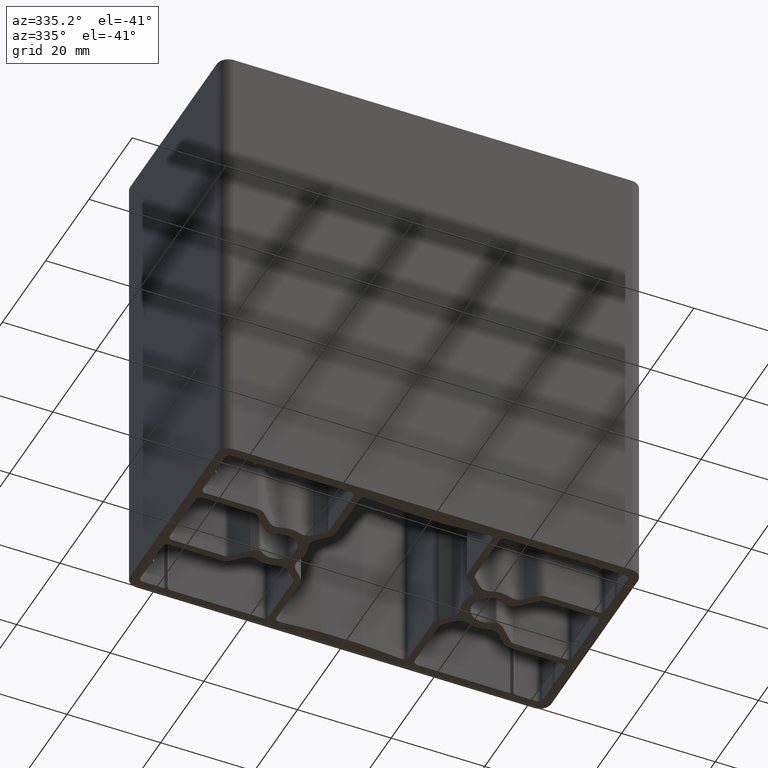
[diagram: clean part render]
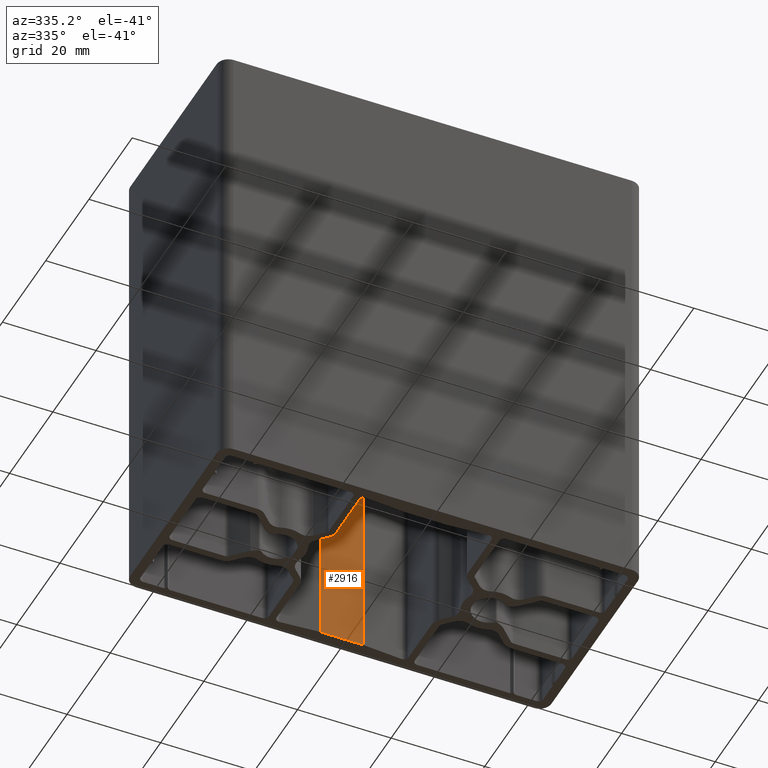
[diagram: same view with one face highlighted and labeled with its STEP entity id]
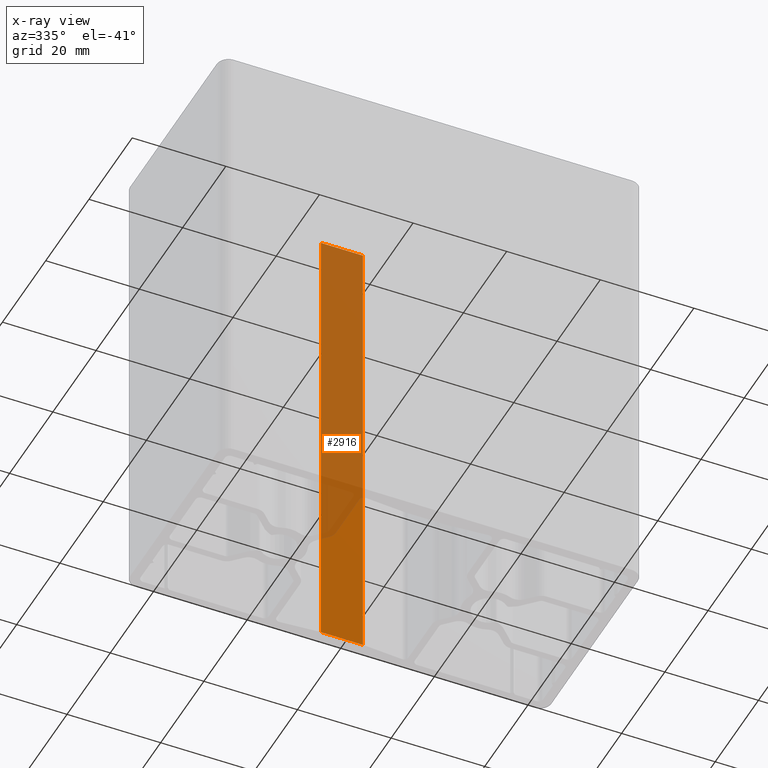
[diagram: x-ray of the same camera — body ghosted, the highlighted face saturated]
A machine part, auxiliary view. The second image highlights one B-rep face of the part: STEP entity #2916.
The next image is the same camera in x-ray: the body ghosted, the highlighted face saturated — about 70% of this face is hidden behind the body in this view.
In plain terms, the highlighted planar face has unit normal (-0, 1, 0).
Its self-contained STEP definition (entity closure, byte-faithful):
#276=FACE_OUTER_BOUND('',#426,.T.);
#426=EDGE_LOOP('',(#2075,#2076,#2077,#2078));
#636=LINE('',#4454,#944);
#637=LINE('',#4457,#945);
#638=LINE('',#4459,#946);
#639=LINE('',#4460,#947);
#944=VECTOR('',#3568,100.);
#945=VECTOR('',#3571,9.);
#946=VECTOR('',#3572,9.);
#947=VECTOR('',#3573,100.);
#1249=VERTEX_POINT('',#4450);
#1250=VERTEX_POINT('',#4452);
#1251=VERTEX_POINT('',#4456);
#1252=VERTEX_POINT('',#4458);
#1588=EDGE_CURVE('',#1250,#1249,#636,.T.);
#1589=EDGE_CURVE('',#1249,#1251,#637,.T.);
#1590=EDGE_CURVE('',#1252,#1250,#638,.T.);
#1591=EDGE_CURVE('',#1252,#1251,#639,.T.);
#2075=ORIENTED_EDGE('',*,*,#1589,.F.);
#2076=ORIENTED_EDGE('',*,*,#1588,.F.);
#2077=ORIENTED_EDGE('',*,*,#1590,.F.);
#2078=ORIENTED_EDGE('',*,*,#1591,.T.);
#2814=PLANE('',#3108);
#2916=ADVANCED_FACE('',(#276),#2814,.F.);
#3108=AXIS2_PLACEMENT_3D('',#4455,#3569,#3570);
#3568=DIRECTION('',(0.,0.,1.));
#3569=DIRECTION('center_axis',(-2.46716227694479E-16,1.,0.));
#3570=DIRECTION('ref_axis',(-1.,-3.5527136788005E-16,0.));
#3571=DIRECTION('',(1.,2.46716227694479E-16,0.));
#3572=DIRECTION('',(-1.,-2.46716227694479E-16,0.));
#3573=DIRECTION('',(0.,0.,1.));
#4450=CARTESIAN_POINT('',(-4.5,19.5,100.));
#4452=CARTESIAN_POINT('',(-4.5,19.5,0.));
#4454=CARTESIAN_POINT('',(-4.5,19.5,0.));
#4455=CARTESIAN_POINT('Origin',(4.5,19.5,0.));
#4456=CARTESIAN_POINT('',(4.5,19.5,100.));
#4457=CARTESIAN_POINT('',(2.25,19.5,100.));
#4458=CARTESIAN_POINT('',(4.5,19.5,0.));
#4459=CARTESIAN_POINT('',(2.25,19.5,0.));
#4460=CARTESIAN_POINT('',(4.5,19.5,0.));